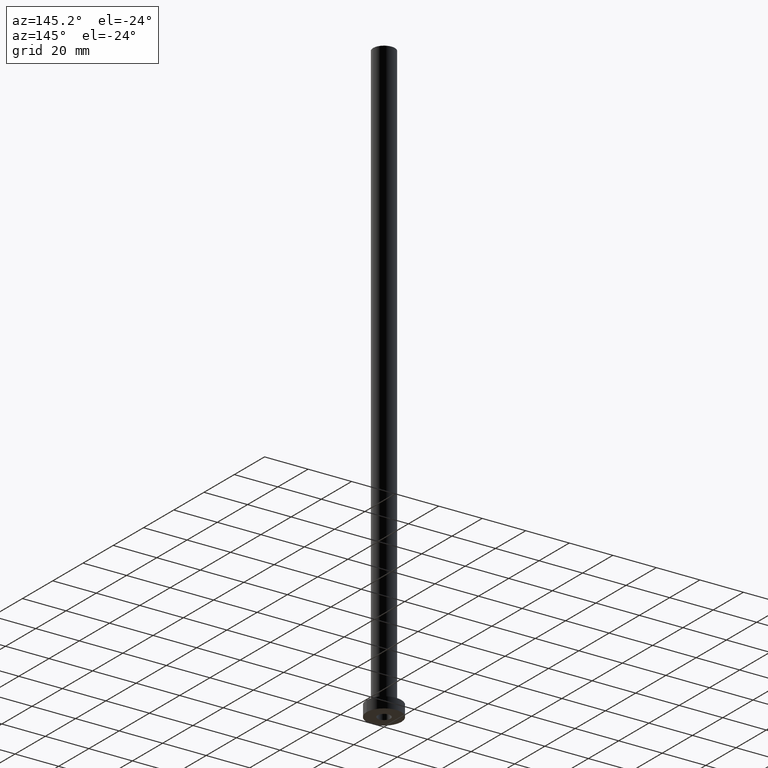
[diagram: clean part render]
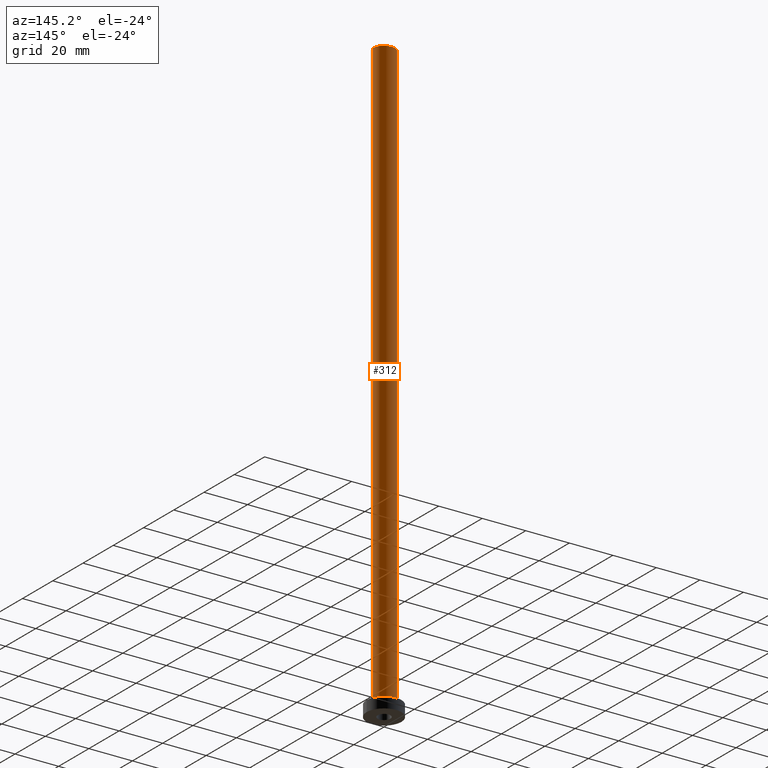
[diagram: same view with one face highlighted and labeled with its STEP entity id]
A machine part, auxiliary view. The second image highlights one B-rep face of the part: STEP entity #312.
In plain terms, the highlighted cylindrical surface (edge-blend (fillet) strip) has radius 5 mm, axis along (-0, -0, -1).
Its self-contained STEP definition (entity closure, byte-faithful):
#7 = ORIENTED_EDGE ( 'NONE', *, *, #432, .F. ) ;
#17 = EDGE_CURVE ( 'NONE', #164, #382, #116, .T. ) ;
#26 = DIRECTION ( 'NONE',  ( 0.000000000000000000, 0.000000000000000000, 1.000000000000000000 ) ) ;
#39 = DIRECTION ( 'NONE',  ( 1.000000000000000000, 0.000000000000000000, 0.000000000000000000 ) ) ;
#49 = VERTEX_POINT ( 'NONE', #451 ) ;
#54 = DIRECTION ( 'NONE',  ( -0.000000000000000000, -0.000000000000000000, -1.000000000000000000 ) ) ;
#60 = CARTESIAN_POINT ( 'NONE',  ( 0.000000000000000000, 0.000000000000000000, 275.0000000000000000 ) ) ;
#68 = ORIENTED_EDGE ( 'NONE', *, *, #163, .T. ) ;
#91 = CIRCLE ( 'NONE', #121, 5.000000000000000000 ) ;
#92 = CARTESIAN_POINT ( 'NONE',  ( 0.000000000000000000, 0.000000000000000000, 275.0000000000000000 ) ) ;
#94 = AXIS2_PLACEMENT_3D ( 'NONE', #217, #359, #357 ) ;
#115 = CARTESIAN_POINT ( 'NONE',  ( -5.000000000000000000, 0.000000000000000000, 275.0000000000000000 ) ) ;
#116 = LINE ( 'NONE', #153, #301 ) ;
#121 = AXIS2_PLACEMENT_3D ( 'NONE', #60, #26, #39 ) ;
#138 = DIRECTION ( 'NONE',  ( -0.000000000000000000, -0.000000000000000000, -1.000000000000000000 ) ) ;
#145 = ORIENTED_EDGE ( 'NONE', *, *, #197, .F. ) ;
#153 = CARTESIAN_POINT ( 'NONE',  ( 5.000000000000000000, 6.123233995736766282E-16, 275.0000000000000000 ) ) ;
#163 = EDGE_CURVE ( 'NONE', #382, #291, #166, .T. ) ;
#164 = VERTEX_POINT ( 'NONE', #322 ) ;
#166 = CIRCLE ( 'NONE', #94, 5.000000000000000000 ) ;
#172 = CARTESIAN_POINT ( 'NONE',  ( -5.000000000000000000, 0.000000000000000000, 5.500000000000005329 ) ) ;
#197 = EDGE_CURVE ( 'NONE', #49, #291, #368, .T. ) ;
#198 = ORIENTED_EDGE ( 'NONE', *, *, #17, .T. ) ;
#217 = CARTESIAN_POINT ( 'NONE',  ( 0.000000000000000000, 0.000000000000000000, 5.500000000000005329 ) ) ;
#234 = EDGE_LOOP ( 'NONE', ( #7, #198, #68, #145 ) ) ;
#276 = DIRECTION ( 'NONE',  ( -1.000000000000000000, 0.000000000000000000, 0.000000000000000000 ) ) ;
#288 = CARTESIAN_POINT ( 'NONE',  ( 5.000000000000000000, 6.123233995736766282E-16, 5.500000000000005329 ) ) ;
#291 = VERTEX_POINT ( 'NONE', #172 ) ;
#301 = VECTOR ( 'NONE', #404, 1000.000000000000000 ) ;
#312 = ADVANCED_FACE ( 'NONE', ( #413 ), #379, .T. ) ;
#322 = CARTESIAN_POINT ( 'NONE',  ( 5.000000000000000000, 6.123233995736766282E-16, 275.0000000000000000 ) ) ;
#357 = DIRECTION ( 'NONE',  ( 1.000000000000000000, 0.000000000000000000, 0.000000000000000000 ) ) ;
#359 = DIRECTION ( 'NONE',  ( 0.000000000000000000, 0.000000000000000000, 1.000000000000000000 ) ) ;
#368 = LINE ( 'NONE', #115, #411 ) ;
#369 = AXIS2_PLACEMENT_3D ( 'NONE', #92, #138, #276 ) ;
#379 = CYLINDRICAL_SURFACE ( 'NONE', #369, 5.000000000000000000 ) ;
#382 = VERTEX_POINT ( 'NONE', #288 ) ;
#404 = DIRECTION ( 'NONE',  ( -0.000000000000000000, -0.000000000000000000, -1.000000000000000000 ) ) ;
#411 = VECTOR ( 'NONE', #54, 1000.000000000000000 ) ;
#413 = FACE_OUTER_BOUND ( 'NONE', #234, .T. ) ;
#432 = EDGE_CURVE ( 'NONE', #164, #49, #91, .T. ) ;
#451 = CARTESIAN_POINT ( 'NONE',  ( -5.000000000000000000, 0.000000000000000000, 275.0000000000000000 ) ) ;